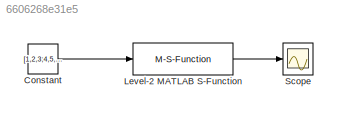
MODEL slx_6606268e31e5
KIND model
CONFIG AbsTol = auto
CONFIG EnableMultiTasking = off
CONFIG FixedStep = auto
CONFIG MaxStep = auto
CONFIG MinStep = auto
CONFIG RelTol = 1e-3
CONFIG SampleTimeConstraint = Unconstrained
CONFIG SolverName = ode45
CONFIG StartTime = 0.0
CONFIG StopTime = 10.0
BLOCK [Constant] Constant
  Value = [1,2,3;4,5,6]
BLOCK [M-S-Function] Level-2 MATLAB S-Function
  FunctionName = general_integrator
  Parameters = 0
BLOCK [Scope] Scope
  ActiveDisplayYMaximum = 67.500000000000071
  ActiveDisplayYMinimum = -7.5000000000000062
  Floating = off
  GraphicalSettings = {"Style":{"BackgroundColor":[0.12941176470588237,0.12941176470588237,0.12941176470588237],"AxesColor":[0.07058823529411765,0.07058823529411765,0.07058823529411765],"LabelsColor":[0.8509803921568627,0.8509803921568627,0.8509803921568627],"PreserveColors":false,"Visible":[true,true,true,true,true,true],"LineStyle":["-","-","-","-","-","-"],"LineWidth":[1.5,1.5,1.5,1.5,1.5,1.5],"BarWidth":[0.9,0.9,0....<+2697ch>
  MultipleDisplayCache = [{"MaxYLimMag":67.500000000000071,"MaxYLimReal":67.500000000000071,"MinYLimMag":0,"MinYLimReal":-7.5000000000000062,"PlotAsMagnitudePhase":false,"ShowGrid":true,"ShowLegend":false,"Title":"%<SignalLabel>","YLabel":""}]
  NumInputPorts = 1
  ScopeFrameLocation = window
  WasSavedAsWebScope = on
  WindowPosition = [744.000000,366.000000,560.000000,420.000000,]
LINE Constant:1 -> Level-2 MATLAB S-Function:1
LINE Level-2 MATLAB S-Function:1 -> Scope:1
